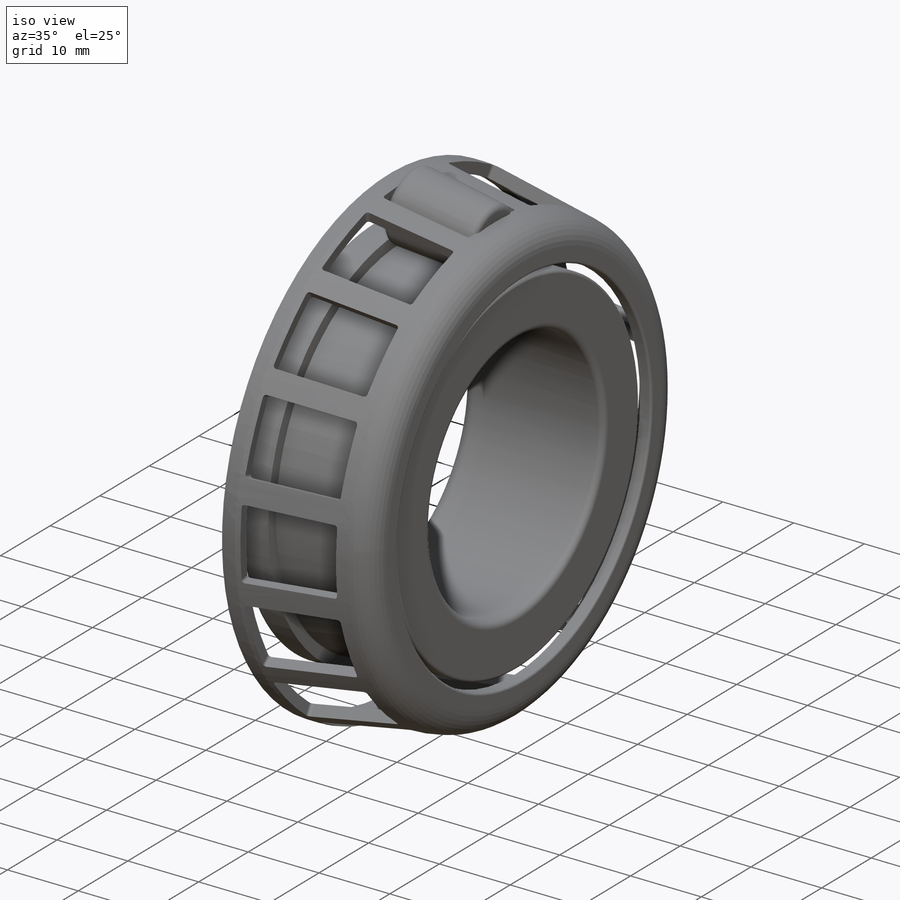
[diagram: iso view]
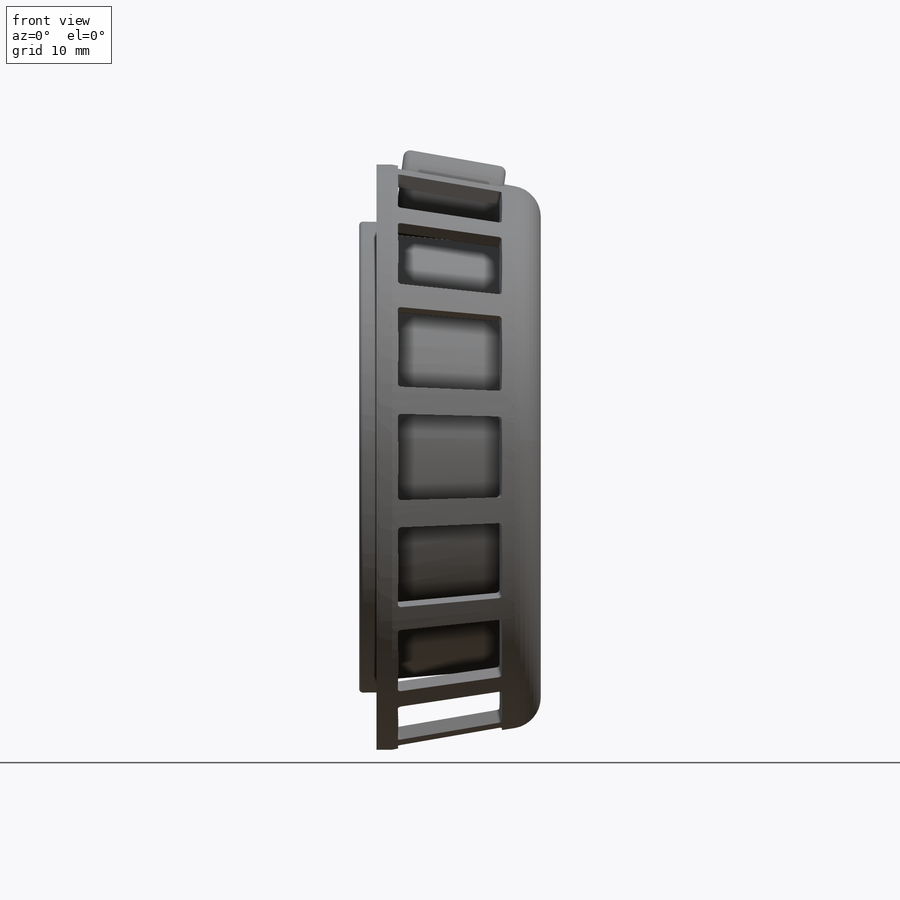
[diagram: front view]
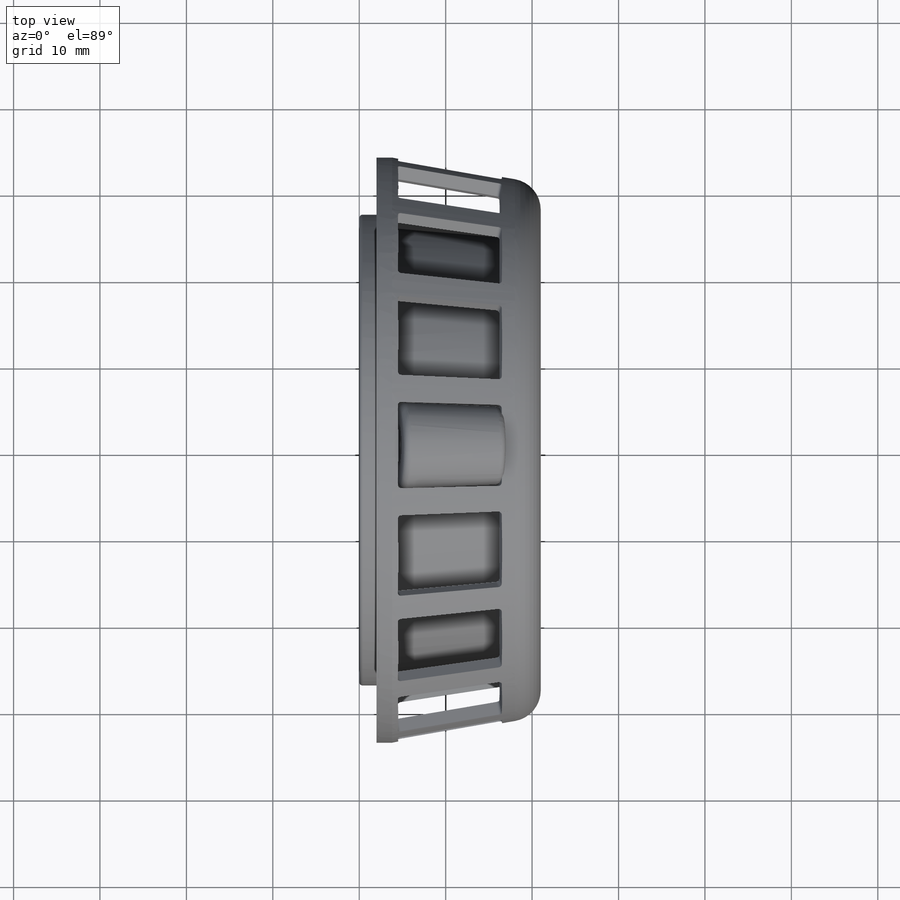
[diagram: top view]
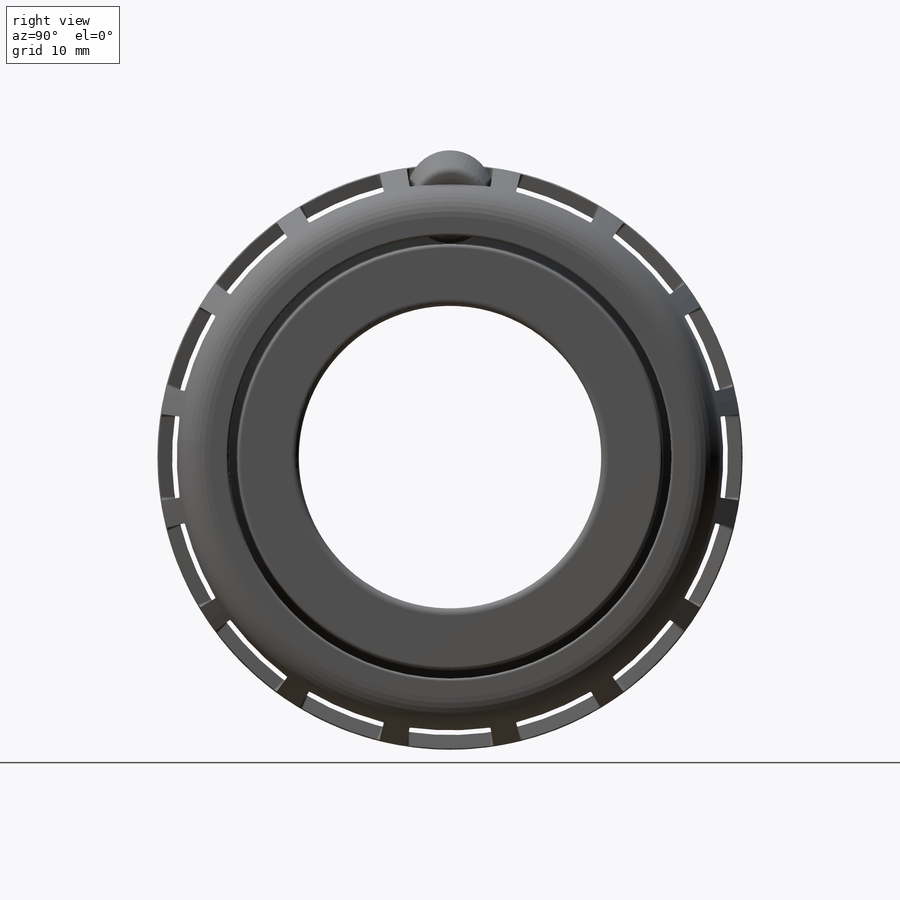
[diagram: right view]
SOLIDWORKS PART (.sldprt)
format: sldprt  version: not decoded by parser v0  size: 13,014,528 bytes
history: native  units: mm
features: fillet x4, sketch x3, revolve x2, pattern_circular x2, material x1, plane x1, cut_extrude x1 (+11 scaffold rows collapsed)
feature tree (25):
  scaffold x11  (default folders/planes/origin — collapsed)
  material  "Materiał <nieokreślony>"
  sketch  "Sketch1"  dims[c1.D14=2.0mm c1.D15=3.6mm c1.D1=20.0mm c1.D2=35.0mm c1.D3=40.0mm c1.D4=1.0mm c1.D5=18.0mm c1.D6=21.0mm c2.D6=5.0deg c2.D7=18.0mm c3.D7=10.0deg c3.D8=~27.733971mm c4.D8=2.5deg c4.D9=12.0mm c4.D10=9.0mm c4.D7=1.8mm c4.D11=2.0mm c4.D12=1.6mm c4.D13=1.6mm c4.D16=0.6mm c4.D17=1.0mm c4.D18=3.9mm c4.D19=18.0mm c5.D19=5.0deg c5.D20=1.6mm c5.D21=2.0mm c5.D7=2.0mm c6.D21=1.8mm c6.D22=1.57mm c6.D23=31.3469mm]
  revolve  "Revolve1"  Angle=360deg
  plane  "Plane1"
  sketch  "Sketch3"  dims[c1.D5=0.4mm c1.D1=12.2mm c1.D2=2.6mm c1.D3=10.0mm c2.D2=2.4mm c2.D4=15.4mm c3.D4=1.5deg c3.D2=2.5mm]
  cut_extrude  "Cut-Extrude1"  Depth=3mm
  pattern_circular  "CirPattern1"  Count=16 Angle=360deg
  sketch  "Sketch4"  dims[D3=0.8mm D1=0.2mm D2=2.5mm]
  revolve  "Revolve2"  Angle=360deg
  pattern_circular  "CirPattern4"  Count=16 Angle=360deg
  fillet  "Fillet1"  Radius=1.5mm
  fillet  "Fillet2"  Radius=0.8mm
  fillet  "Fillet3"  Radius=0.4mm
  fillet  "Fillet4"  Radius=0.3mm
decode coverage: 12 of 12 modeling features carry decoded parameters
note: ~ marks probable driven/reference dimensions
note: suppression state not decoded; provenance and decode notes live in map.json
